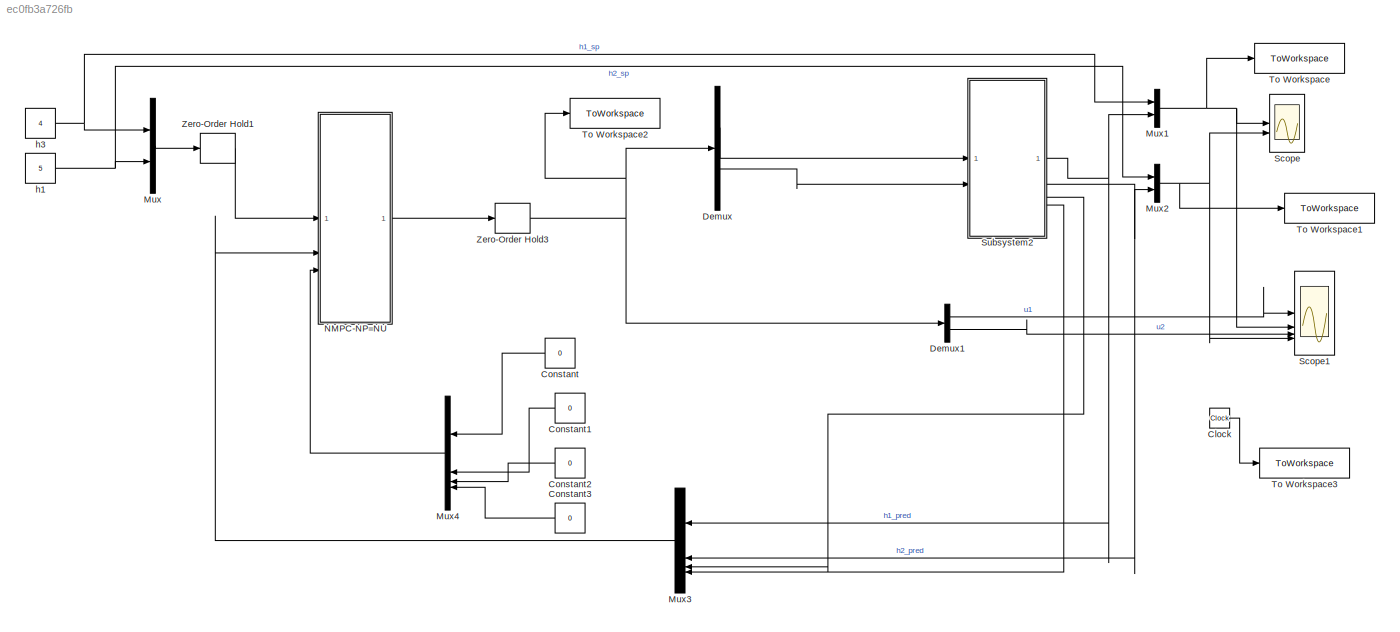
MODEL slx_ec0fb3a726fb
KIND model
CONFIG AbsTol = auto
CONFIG EnableMultiTasking = off
CONFIG FixedStep = auto
CONFIG MaxStep = auto
CONFIG MinStep = auto
CONFIG RelTol = 1e-3
CONFIG SampleTimeConstraint = Unconstrained
CONFIG SolverName = VariableStepAuto
CONFIG StartTime = 0.0
CONFIG StopTime = 1200
BLOCK [Clock] Clock
BLOCK [Constant] Constant
  Value = 0
BLOCK [Constant] Constant1
  Value = 0
BLOCK [Constant] Constant2
  Value = 0
BLOCK [Constant] Constant3
  Value = 0
BLOCK [Demux] Demux
  Outputs = 2
BLOCK [Demux] Demux1
  Outputs = 2
BLOCK [Mux] Mux
  DisplayOption = bar
  Inputs = 2
BLOCK [Mux] Mux1
  DisplayOption = bar
  Inputs = 2
BLOCK [Mux] Mux2
  DisplayOption = bar
  Inputs = 2
BLOCK [Mux] Mux3
  DisplayOption = bar
BLOCK [Mux] Mux4
  DisplayOption = bar
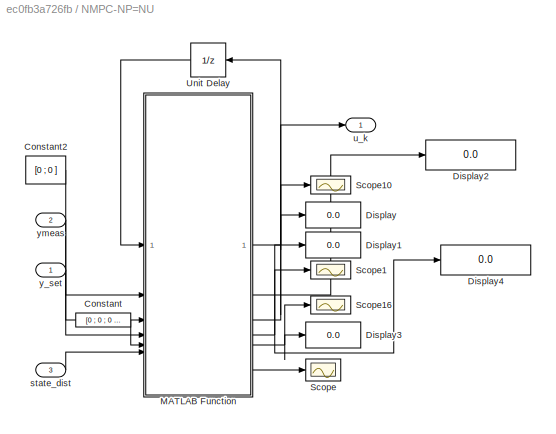
BLOCK [SubSystem] NMPC-NP=NU
BLOCK [Constant] NMPC-NP=NU/Constant
  Value = [0 ; 0 ; 0 ; 0]
BLOCK [Constant] NMPC-NP=NU/Constant2
  Value = [0 ; 0 ]
BLOCK [Display] NMPC-NP=NU/Display
  Decimation = 1
BLOCK [Display] NMPC-NP=NU/Display1
  Decimation = 1
BLOCK [Display] NMPC-NP=NU/Display2
  Decimation = 1
BLOCK [Display] NMPC-NP=NU/Display3
  Decimation = 1
BLOCK [Display] NMPC-NP=NU/Display4
  Decimation = 1
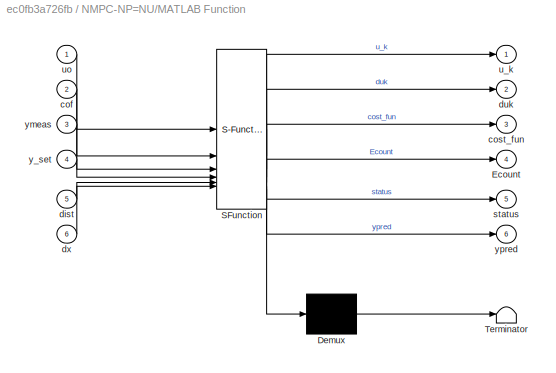
BLOCK [SubSystem] NMPC-NP=NU/MATLAB Function
  ErrorFcn = Stateflow.Translate.translate
  PermitHierarchicalResolution = ExplicitOnly
  SFBlockType = MATLAB Function
  TreatAsAtomicUnit = on
BLOCK [Demux] NMPC-NP=NU/MATLAB Function/ Demux 
  Outputs = 1
BLOCK [S-Function] NMPC-NP=NU/MATLAB Function/ SFunction 
  EnableBusSupport = on
  FunctionName = sf_sfun
  PortCounts = [6 7]
  SFcnIsStateOwnerBlock = off
  SFunctionDeploymentMode = off
  Tag = Stateflow S-Function 2
BLOCK [Terminator] NMPC-NP=NU/MATLAB Function/ Terminator 
BLOCK [Outport] NMPC-NP=NU/MATLAB Function/Ecount
  Port = 4
  VectorParamsAs1DForOutWhenUnconnected = off
BLOCK [Inport] NMPC-NP=NU/MATLAB Function/cof
  Port = 2
BLOCK [Outport] NMPC-NP=NU/MATLAB Function/cost_fun
  Port = 3
  VectorParamsAs1DForOutWhenUnconnected = off
BLOCK [Inport] NMPC-NP=NU/MATLAB Function/dist
  Port = 5
BLOCK [Outport] NMPC-NP=NU/MATLAB Function/duk
  Port = 2
BLOCK [Inport] NMPC-NP=NU/MATLAB Function/dx
  Port = 6
BLOCK [Outport] NMPC-NP=NU/MATLAB Function/status
  Port = 5
  VectorParamsAs1DForOutWhenUnconnected = off
BLOCK [Outport] NMPC-NP=NU/MATLAB Function/u_k
  VectorParamsAs1DForOutWhenUnconnected = off
BLOCK [Inport] NMPC-NP=NU/MATLAB Function/uo
BLOCK [Inport] NMPC-NP=NU/MATLAB Function/y_set
  Port = 4
BLOCK [Inport] NMPC-NP=NU/MATLAB Function/ymeas
  Port = 3
BLOCK [Outport] NMPC-NP=NU/MATLAB Function/ypred
  Port = 6
  VectorParamsAs1DForOutWhenUnconnected = off
BLOCK [Scope] NMPC-NP=NU/Scope
  Floating = off
  NumInputPorts = 1
  ScopeSpecificationString = Simulink.scopes.TimeScopeBlockCfg('CurrentConfiguration', extmgr.ConfigurationSet(extmgr.Configuration('Core','General UI',true),extmgr.Configuration('Core','Source UI',true),extmgr.Configuration('Sources','WiredSimulink',true,'DataLoggingVariableName','ScopeData8'),extmgr.Configuration('Visuals','Time Domain',true),extmgr.Configuration('Tools','Plot Navigation',true),extmgr.Configuration('Tools',...<+40ch>
BLOCK [Scope] NMPC-NP=NU/Scope1
  Floating = off
  NumInputPorts = 1
  ScopeSpecificationString = Simulink.scopes.TimeScopeBlockCfg('CurrentConfiguration', extmgr.ConfigurationSet(extmgr.Configuration('Core','General UI',true,'FigureColor',[0.156862745098039 0.156862745098039 0.156862745098039]),extmgr.Configuration('Core','Source UI',true),extmgr.Configuration('Sources','WiredSimulink',true,'DataLogging',true,'DataLoggingVariableName','ScopeData6','DataLoggingSaveFormat','StructureWithTime','...<+2809ch>
BLOCK [Scope] NMPC-NP=NU/Scope10
  Floating = off
  NumInputPorts = 1
  ScopeSpecificationString = Simulink.scopes.TimeScopeBlockCfg('CurrentConfiguration', extmgr.ConfigurationSet(extmgr.Configuration('Core','General UI',true,'FigureColor',[0.156862745098039 0.156862745098039 0.156862745098039]),extmgr.Configuration('Core','Source UI',true),extmgr.Configuration('Sources','WiredSimulink',true,'DataLogging',true,'DataLoggingVariableName','ScopeData1','DataLoggingSaveFormat','StructureWithTime','...<+2830ch>
BLOCK [Scope] NMPC-NP=NU/Scope16
  Floating = off
  NumInputPorts = 1
  ScopeSpecificationString = Simulink.scopes.TimeScopeBlockCfg('CurrentConfiguration', extmgr.ConfigurationSet(extmgr.Configuration('Core','General UI',true,'FigureColor',[0.156862745098039 0.156862745098039 0.156862745098039]),extmgr.Configuration('Core','Source UI',true),extmgr.Configuration('Sources','WiredSimulink',true,'DataLogging',true,'DataLoggingVariableName','ScopeData2','DataLoggingSaveFormat','StructureWithTime','...<+2785ch>
BLOCK [UnitDelay] NMPC-NP=NU/Unit Delay
  HasFrameUpgradeWarning = on
  InitialCondition = [55;75]
  SampleTime = Ts
BLOCK [Inport] NMPC-NP=NU/state_dist
  Port = 3
BLOCK [Outport] NMPC-NP=NU/u_k
  VectorParamsAs1DForOutWhenUnconnected = off
BLOCK [Inport] NMPC-NP=NU/y_set
BLOCK [Inport] NMPC-NP=NU/ymeas
  Port = 2
BLOCK [Scope] Scope
  Floating = off
  NumInputPorts = 2
  ScopeSpecificationString = Simulink.scopes.TimeScopeBlockCfg('CurrentConfiguration', extmgr.ConfigurationSet(extmgr.Configuration('Core','General UI',true),extmgr.Configuration('Core','Source UI',true),extmgr.Configuration('Sources','WiredSimulink',true,'DataLoggingVariableName','ScopeData1'),extmgr.Configuration('Visuals','Time Domain',true),extmgr.Configuration('Tools','Plot Navigation',true),extmgr.Configuration('Tools',...<+40ch>
BLOCK [Scope] Scope1
  Floating = off
  NumInputPorts = 4
  ScopeSpecificationString = Simulink.scopes.TimeScopeBlockCfg('CurrentConfiguration', extmgr.ConfigurationSet(extmgr.Configuration('Core','General UI',true),extmgr.Configuration('Core','Source UI',true),extmgr.Configuration('Sources','WiredSimulink',true,'DataLoggingVariableName','ScopeData2'),extmgr.Configuration('Visuals','Time Domain',true,'SerializedDisplays',{struct('MinYLimReal','54.99761','MaxYLimReal','55.02148','YLa...<+3432ch>
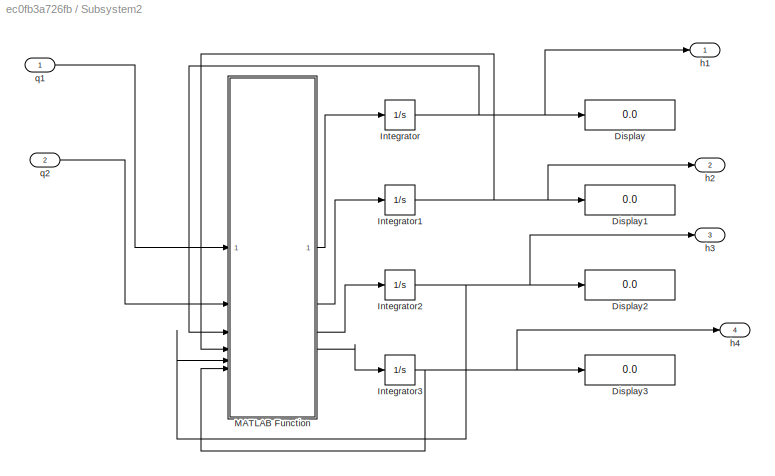
BLOCK [SubSystem] Subsystem2
BLOCK [Display] Subsystem2/Display
  Decimation = 1
BLOCK [Display] Subsystem2/Display1
  Decimation = 1
BLOCK [Display] Subsystem2/Display2
  Decimation = 1
BLOCK [Display] Subsystem2/Display3
  Decimation = 1
BLOCK [Integrator] Subsystem2/Integrator
BLOCK [Integrator] Subsystem2/Integrator1
BLOCK [Integrator] Subsystem2/Integrator2
BLOCK [Integrator] Subsystem2/Integrator3
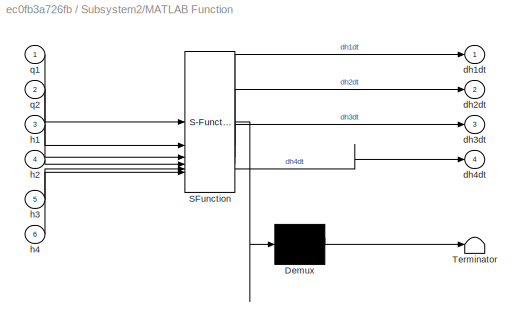
BLOCK [SubSystem] Subsystem2/MATLAB Function
  ErrorFcn = Stateflow.Translate.translate
  PermitHierarchicalResolution = ExplicitOnly
  SFBlockType = MATLAB Function
  TreatAsAtomicUnit = on
BLOCK [Demux] Subsystem2/MATLAB Function/ Demux 
  Outputs = 1
BLOCK [S-Function] Subsystem2/MATLAB Function/ SFunction 
  EnableBusSupport = on
  FunctionName = sf_sfun
  PortCounts = [6 5]
  SFcnIsStateOwnerBlock = off
  SFunctionDeploymentMode = off
  Tag = Stateflow S-Function 3
BLOCK [Terminator] Subsystem2/MATLAB Function/ Terminator 
BLOCK [Outport] Subsystem2/MATLAB Function/dh1dt
BLOCK [Outport] Subsystem2/MATLAB Function/dh2dt
  Port = 2
BLOCK [Outport] Subsystem2/MATLAB Function/dh3dt
  Port = 3
BLOCK [Outport] Subsystem2/MATLAB Function/dh4dt
  Port = 4
BLOCK [Inport] Subsystem2/MATLAB Function/h1
  Port = 3
BLOCK [Inport] Subsystem2/MATLAB Function/h2
  Port = 4
BLOCK [Inport] Subsystem2/MATLAB Function/h3
  Port = 5
BLOCK [Inport] Subsystem2/MATLAB Function/h4
  Port = 6
BLOCK [Inport] Subsystem2/MATLAB Function/q1
BLOCK [Inport] Subsystem2/MATLAB Function/q2
  Port = 2
BLOCK [Outport] Subsystem2/h1
BLOCK [Outport] Subsystem2/h2
  Port = 2
BLOCK [Outport] Subsystem2/h3
  Port = 3
BLOCK [Outport] Subsystem2/h4
  Port = 4
BLOCK [Inport] Subsystem2/q1
BLOCK [Inport] Subsystem2/q2
  Port = 2
BLOCK [ToWorkspace] To Workspace
  FixptAsFi = on
  MaxDataPoints = inf
  SampleTime = Ts
  SaveFormat = Timeseries
  VariableName = H1_nom
BLOCK [ToWorkspace] To Workspace1
  FixptAsFi = on
  MaxDataPoints = inf
  SampleTime = Ts
  SaveFormat = Timeseries
  VariableName = H2_nom
BLOCK [ToWorkspace] To Workspace2
  FixptAsFi = on
  MaxDataPoints = inf
  SampleTime = Ts
  SaveFormat = Timeseries
  VariableName = V_nom
BLOCK [ToWorkspace] To Workspace3
  FixptAsFi = on
  MaxDataPoints = inf
  SampleTime = Ts
  SaveFormat = Timeseries
  VariableName = t_save
BLOCK [ZeroOrderHold] Zero-Order Hold1
  SampleTime = Ts
BLOCK [ZeroOrderHold] Zero-Order Hold3
  SampleTime = Ts
BLOCK [Constant] h1
  Value = 5
BLOCK [Constant] h3
  Value = 4
LINE Clock:1 -> To Workspace3:1
LINE Constant1:1 -> Mux4:2
LINE Constant2:1 -> Mux4:3
LINE Constant3:1 -> Mux4:4
LINE Constant:1 -> Mux4:1
LINE Demux1:1 -> Scope1:1
LINE Demux1:2 -> Scope1:3
LINE Demux:1 -> Subsystem2:1
LINE Demux:2 -> Subsystem2:2
NET Mux1:1 -> Scope1:2, Scope:1, To Workspace:1
NET Mux2:1 -> Scope1:4, Scope:2, To Workspace1:1
LINE Mux3:1 -> NMPC-NP=NU:2
LINE Mux4:1 -> NMPC-NP=NU:3
LINE Mux:1 -> Zero-Order Hold1:1
LINE NMPC-NP=NU/Constant2:1 -> NMPC-NP=NU/MATLAB Function:2
LINE NMPC-NP=NU/Constant:1 -> NMPC-NP=NU/MATLAB Function:5
NET NMPC-NP=NU/MATLAB Function:1 -> NMPC-NP=NU/Unit Delay:1, NMPC-NP=NU/u_k:1
LINE NMPC-NP=NU/MATLAB Function:2 -> NMPC-NP=NU/Display2:1
NET NMPC-NP=NU/MATLAB Function:3 -> NMPC-NP=NU/Display:1, NMPC-NP=NU/Scope10:1
NET NMPC-NP=NU/MATLAB Function:4 -> NMPC-NP=NU/Display1:1, NMPC-NP=NU/Display4:1, NMPC-NP=NU/Scope1:1
NET NMPC-NP=NU/MATLAB Function:5 -> NMPC-NP=NU/Display3:1, NMPC-NP=NU/Scope16:1
LINE NMPC-NP=NU/MATLAB Function:6 -> NMPC-NP=NU/Scope:1
LINE NMPC-NP=NU/Unit Delay:1 -> NMPC-NP=NU/MATLAB Function:1
LINE NMPC-NP=NU/state_dist:1 -> NMPC-NP=NU/MATLAB Function:6
LINE NMPC-NP=NU/y_set:1 -> NMPC-NP=NU/MATLAB Function:4
LINE NMPC-NP=NU/ymeas:1 -> NMPC-NP=NU/MATLAB Function:3
LINE NMPC-NP=NU:1 -> Zero-Order Hold3:1
NET Subsystem2/Integrator1:1 -> Subsystem2/Display1:1, Subsystem2/MATLAB Function:4, Subsystem2/h2:1
NET Subsystem2/Integrator2:1 -> Subsystem2/Display2:1, Subsystem2/MATLAB Function:5, Subsystem2/h3:1
NET Subsystem2/Integrator3:1 -> Subsystem2/Display3:1, Subsystem2/MATLAB Function:6, Subsystem2/h4:1
NET Subsystem2/Integrator:1 -> Subsystem2/Display:1, Subsystem2/MATLAB Function:3, Subsystem2/h1:1
LINE Subsystem2/MATLAB Function:1 -> Subsystem2/Integrator:1
LINE Subsystem2/MATLAB Function:2 -> Subsystem2/Integrator1:1
LINE Subsystem2/MATLAB Function:3 -> Subsystem2/Integrator2:1
LINE Subsystem2/MATLAB Function:4 -> Subsystem2/Integrator3:1
LINE Subsystem2/q1:1 -> Subsystem2/MATLAB Function:1
LINE Subsystem2/q2:1 -> Subsystem2/MATLAB Function:2
NET Subsystem2:1 -> Mux1:2, Mux3:1
NET Subsystem2:2 -> Mux2:2, Mux3:2
LINE Subsystem2:3 -> Mux3:3
LINE Subsystem2:4 -> Mux3:4
LINE Zero-Order Hold1:1 -> NMPC-NP=NU:1
NET Zero-Order Hold3:1 -> Demux1:1, Demux:1, To Workspace2:1
NET h1:1 -> Mux2:1, Mux:2
NET h3:1 -> Mux1:1, Mux:1
note: NET lines group one-source signal fan-out (src -> all destinations, sorted); 1:1 wires keep LINE
CHART NMPC-NP=NU/MATLAB Function states=1 transitions=1
  STATE_LABEL 'eML_blk_kernel()'
  STATE_LABEL "SCRIPT:\nfunction [u_k,duk,cost_fun,Ecount,status,ypred] = NMPC_FT(uo,cof,ymeas,y_set,dist,dx)\n\n%#codegen\ncoder.extrinsic('ucompute')\n\nr1=y_set(1)  ; \nr2=y_set(2)  ; \n\nxo=ymeas  ;\n\n\nd1 = dist(1,:);\nd2 = dist(2,:);\nd3 = dist(3,:);\nd4 = dist(4,:);\n\n%MPC TUNNING PARAMETERS\nNp=10;  % 3  %   10  60  40\n%Nu=1;   %  2   %  1\n\n\n%%%%%%%%%%%%%%%%%%%%%%%%%%%%%%%%%%%%%%%%%%%%%%%%%%%%%%%%%%%%%\n\n% WEIGHTS ON Y, ...<+1641ch>"
CHART Subsystem2/MATLAB Function states=1 transitions=1
  STATE_LABEL 'eML_blk_kernel()'
  STATE_LABEL 'SCRIPT:\nfunction [dh1dt,dh2dt,dh3dt,dh4dt] = fcn(q1,q2,h1,h2,h3,h4)\nvalues = {0.97,0.42,0.74,0.426,0.8542,0.7126,0.7722,0.5149,35,35,39,39,981,0.23,0.19};\n[a1,a3,a2,a4,alpha1,alpha3,alpha2,alpha4,A1,A3,A2,A4,g,gamma1,gamma2] = values{:};\n\n%F = k1 * v1;\n%F2 = k2 * v2;\n\n    dh1dt = -(a1*alpha1/A1) * sqrt(2 * g * h1) + (a3*alpha3/A1) * sqrt(2 * g * h3) + (gamma1 * q1) / A1;\n    dh2dt = -(a2*alpha2/A2...<+235ch>'
CHART  states=0 transitions=0
CHART  states=0 transitions=0
